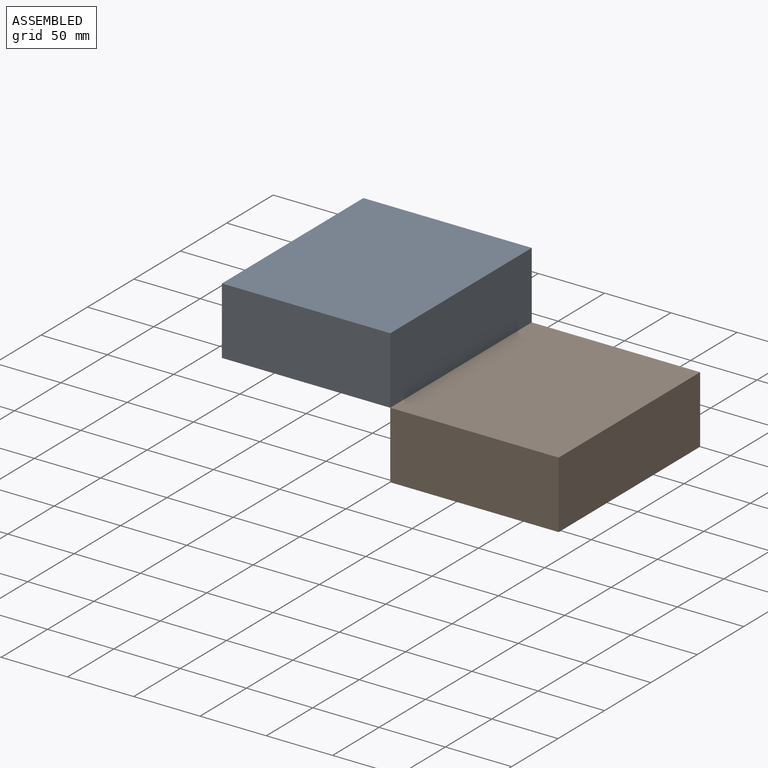
[diagram: assembled view]
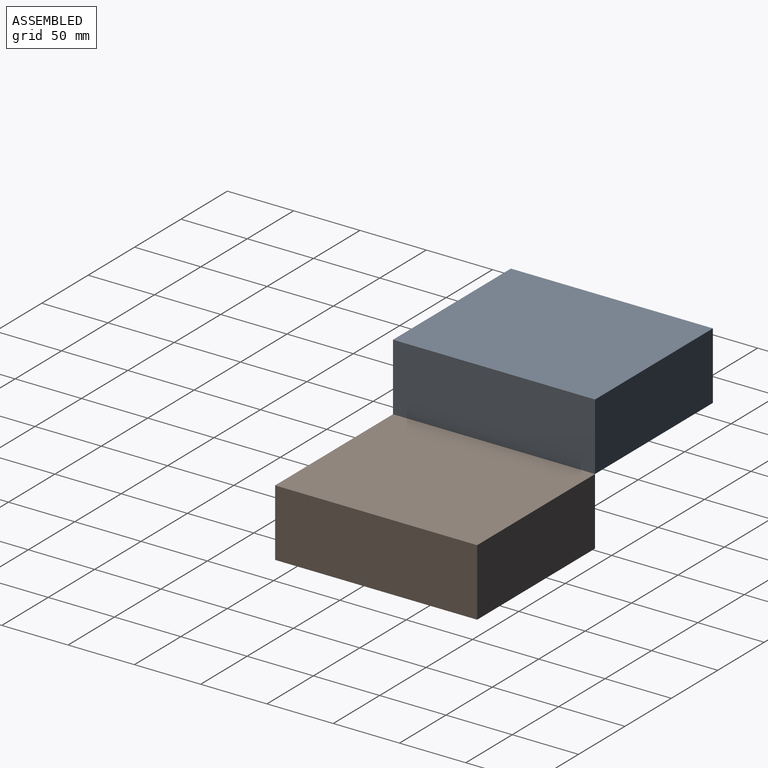
[diagram: assembled view, second angle]
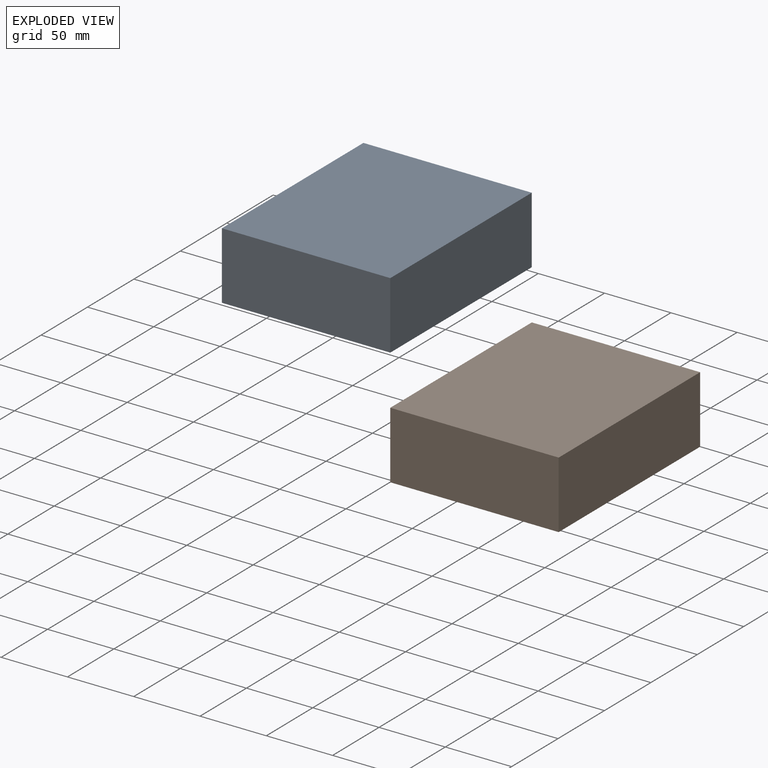
[diagram: exploded view]
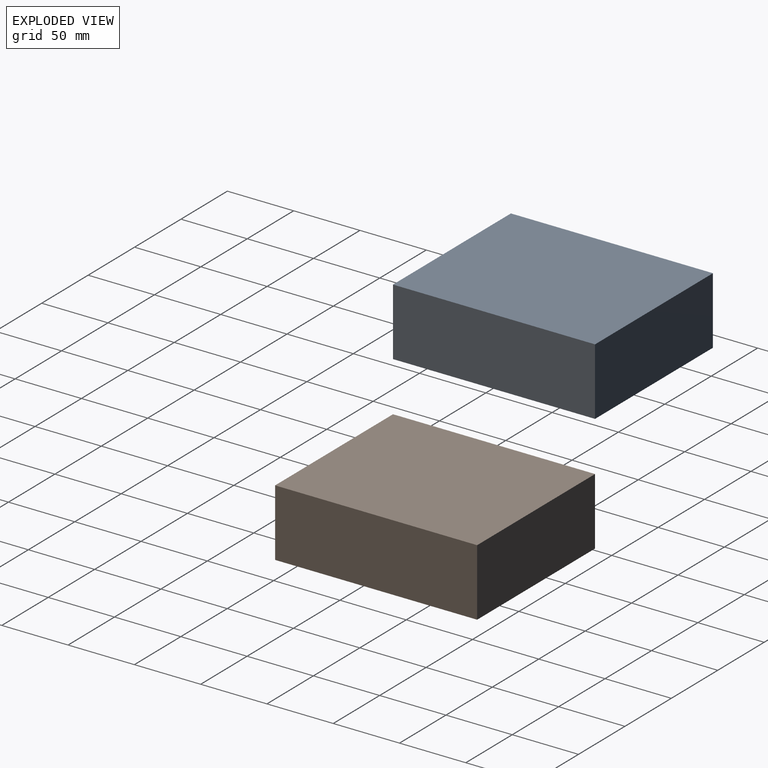
[diagram: exploded view, second angle]
ASSEMBLY  parts=2 mates=2
PART A: 6 faces, bbox 127x152.4x50.8 mm
  f0: plane 152.4x50.8mm, normal (-1,0,0), area 7741.9mm2, adj f1,f3,f4,f5
  f1: plane 152.4x127mm, normal (0,0,-1), area 19354.8mm2, adj f0,f2,f4,f5
  f2: plane 152.4x50.8mm, normal (1,0,0), area 7741.9mm2, adj f1,f3,f4,f5
  f3: plane 152.4x127mm, normal (0,0,1), area 19354.8mm2, adj f0,f2,f4,f5
  f4: plane 127x50.8mm, normal (0,1,0), area 6451.6mm2, adj f0,f1,f2,f3
  f5: plane 127x50.8mm, normal (0,-1,0), area 6451.6mm2, adj f0,f1,f2,f3
PART B: same geometry as A
PLACE A t=(-171.01,-10.77,116.79)mm
PLACE B t=(-44.01,-10.77,65.99)mm fixed
MATE slider A.f5 <-> B.f5  axis (0,-1,0) through (-44.01,-10.77,116.79)mm
MATE planar A.f5 <-> B.f5  axis (0,-1,0) through (-107.51,-10.77,142.19)mm
